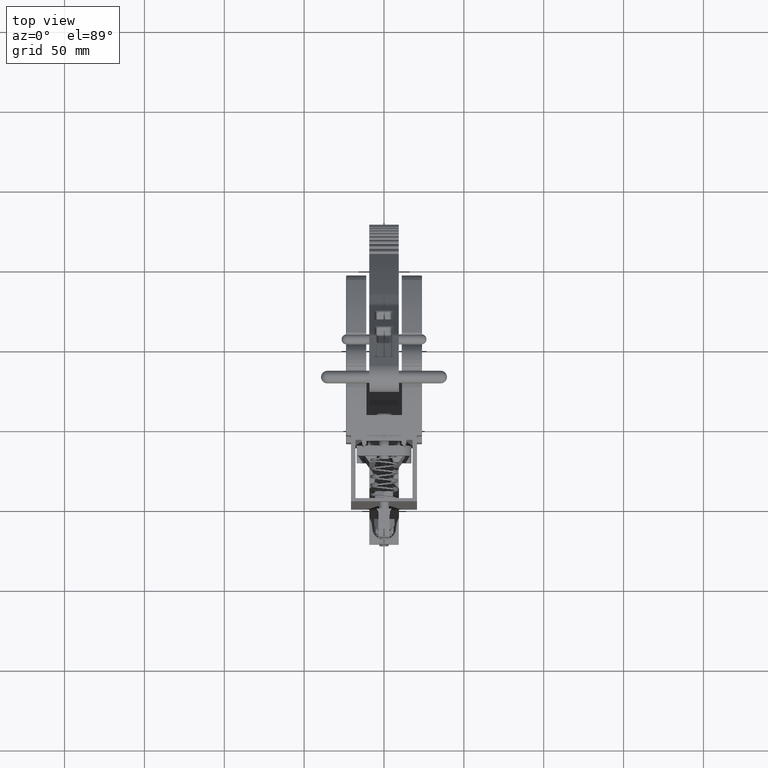
[diagram: clean part render]
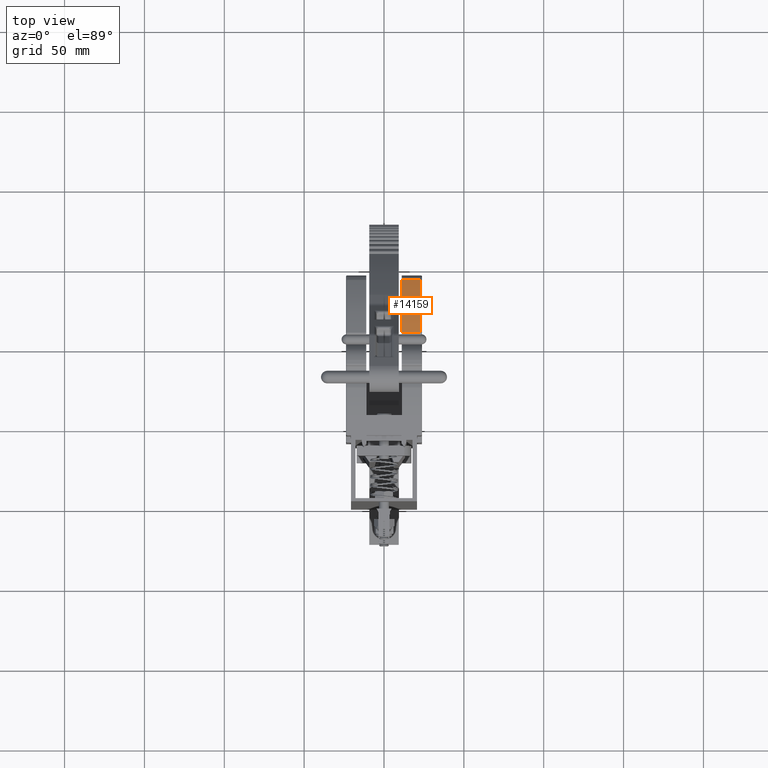
[diagram: same view with one face highlighted and labeled with its STEP entity id]
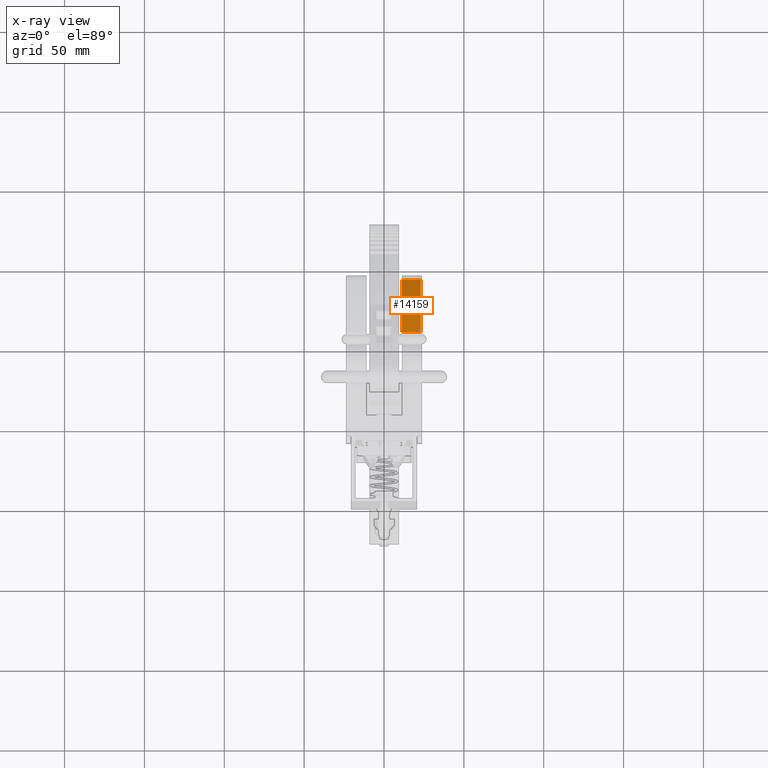
[diagram: x-ray of the same camera — body ghosted, the highlighted face saturated]
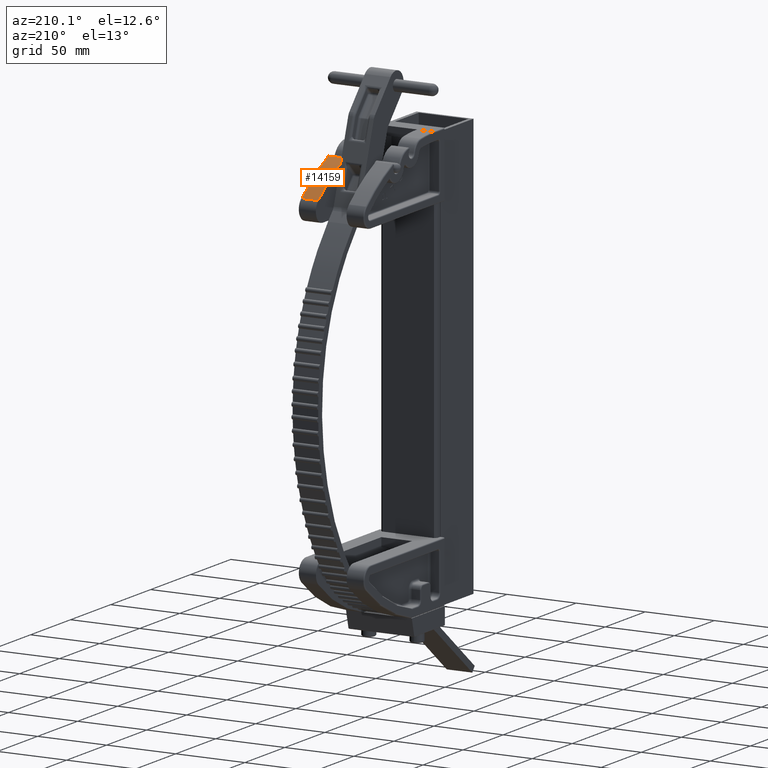
[diagram: same view with one face highlighted and labeled with its STEP entity id]
A machine part, top view. The second image highlights one B-rep face of the part: STEP entity #14159.
The next image is the same camera in x-ray: the body ghosted, the highlighted face saturated — about 0% of this face is hidden behind the body in this view.
A second angle (auxiliary view) of the same face is appended — the face is thin or edge-on in the first view.
In plain terms, the highlighted cylindrical surface (partial cylindrical patch) has radius 130.175 mm, axis along (-1, -0, -0).
Its self-contained STEP definition (entity closure, byte-faithful):
#371 = EDGE_CURVE ( 'NONE', #24944, #10998, #19905, .T. ) ;
#1331 = CARTESIAN_POINT ( 'NONE',  ( -0.6277702278904446800, 3.850898843547277700, 0.4375000000000019400 ) ) ;
#3676 = DIRECTION ( 'NONE',  ( 1.665334536937737500E-016, -3.704949169564801900E-016, -1.000000000000000000 ) ) ;
#6958 = FACE_OUTER_BOUND ( 'NONE', #21287, .T. ) ;
#8317 = DIRECTION ( 'NONE',  ( 1.665334536937737500E-016, -3.704949169564801900E-016, -1.000000000000000000 ) ) ;
#8571 = ORIENTED_EDGE ( 'NONE', *, *, #371, .T. ) ;
#8973 = VECTOR ( 'NONE', #28218, 39.37007874015748100 ) ;
#10998 = VERTEX_POINT ( 'NONE', #28165 ) ;
#12519 = AXIS2_PLACEMENT_3D ( 'NONE', #26462, #8317, #29488 ) ;
#13090 = AXIS2_PLACEMENT_3D ( 'NONE', #37008, #35867, #18844 ) ;
#13091 = VERTEX_POINT ( 'NONE', #34469 ) ;
#13636 = EDGE_CURVE ( 'NONE', #23782, #10998, #17035, .T. ) ;
#14056 = CYLINDRICAL_SURFACE ( 'NONE', #33584, 5.125000000000017800 ) ;
#14159 = ADVANCED_FACE ( 'NONE', ( #6958 ), #14056, .T. ) ;
#15518 = VECTOR ( 'NONE', #21253, 39.37007874015748100 ) ;
#15898 = CARTESIAN_POINT ( 'NONE',  ( 3.250000000000009300, 0.5000000000000006700, 0.9375000000000000000 ) ) ;
#16654 = CIRCLE ( 'NONE', #12519, 5.125000000000017800 ) ;
#17035 = LINE ( 'NONE', #19072, #8973 ) ;
#18844 = DIRECTION ( 'NONE',  ( 0.0000000000000000000, -1.000000000000000000, -4.530869843150485300E-016 ) ) ;
#19072 = CARTESIAN_POINT ( 'NONE',  ( -1.448713300898040800, 2.546391535352863700, 0.9375000000000011100 ) ) ;
#19905 = CIRCLE ( 'NONE', #13090, 5.125000000000000000 ) ;
#21253 = DIRECTION ( 'NONE',  ( 1.665334536937737500E-016, -3.704949169564801400E-016, -1.000000000000000000 ) ) ;
#21287 = EDGE_LOOP ( 'NONE', ( #25888, #8571, #38073, #29035 ) ) ;
#21827 = DIRECTION ( 'NONE',  ( -1.000000000000000000, -2.665217554794393900E-017, 1.599130532876636200E-016 ) ) ;
#23158 = CARTESIAN_POINT ( 'NONE',  ( -1.448713300898040800, 2.546391535352863700, 0.9062500000000011100 ) ) ;
#23782 = VERTEX_POINT ( 'NONE', #23158 ) ;
#24944 = VERTEX_POINT ( 'NONE', #1331 ) ;
#25888 = ORIENTED_EDGE ( 'NONE', *, *, #30785, .T. ) ;
#26462 = CARTESIAN_POINT ( 'NONE',  ( 3.250000000000009300, 0.5000000000000006700, 0.9062500000000001100 ) ) ;
#27364 = CARTESIAN_POINT ( 'NONE',  ( -0.6277702278904446800, 3.850898843547277700, 0.9375000000000011100 ) ) ;
#28165 = CARTESIAN_POINT ( 'NONE',  ( -1.448713300898040800, 2.546391535352863700, 0.4375000000000013300 ) ) ;
#28218 = DIRECTION ( 'NONE',  ( 1.665334536937737500E-016, -3.704949169564801400E-016, -1.000000000000000000 ) ) ;
#29035 = ORIENTED_EDGE ( 'NONE', *, *, #39277, .T. ) ;
#29488 = DIRECTION ( 'NONE',  ( 1.000000000000000000, 2.665217554794393900E-017, -1.599130532876636200E-016 ) ) ;
#30785 = EDGE_CURVE ( 'NONE', #13091, #24944, #38678, .T. ) ;
#33584 = AXIS2_PLACEMENT_3D ( 'NONE', #15898, #3676, #21827 ) ;
#34469 = CARTESIAN_POINT ( 'NONE',  ( -0.6277702278904446800, 3.850898843547277700, 0.9062500000000011100 ) ) ;
#35867 = DIRECTION ( 'NONE',  ( -1.665334536937737300E-016, 2.827266907532066300E-016, 1.000000000000000000 ) ) ;
#37008 = CARTESIAN_POINT ( 'NONE',  ( 3.250000000000009300, 0.5000000000000006700, 0.4374999999999995000 ) ) ;
#38073 = ORIENTED_EDGE ( 'NONE', *, *, #13636, .F. ) ;
#38678 = LINE ( 'NONE', #27364, #15518 ) ;
#39277 = EDGE_CURVE ( 'NONE', #23782, #13091, #16654, .T. ) ;